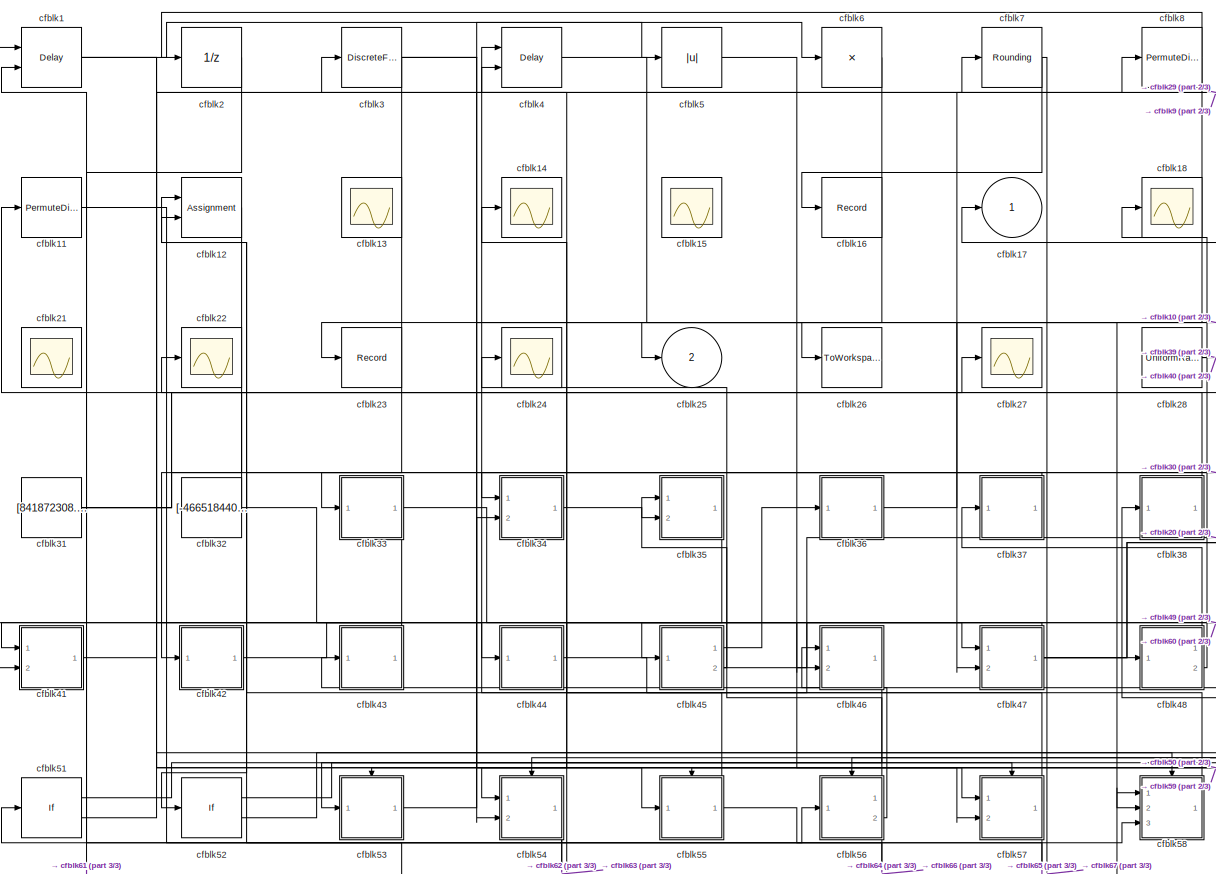
[diagram: root canvas - part 1/3, most of the canvas]
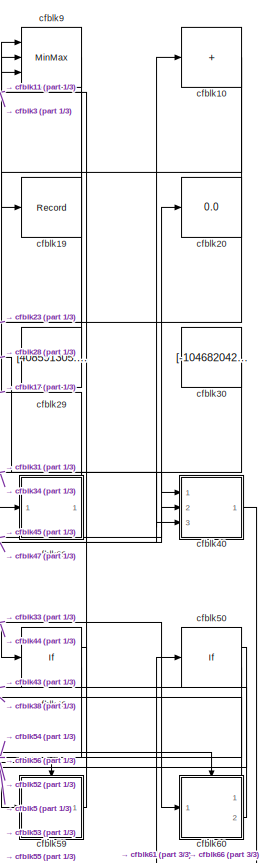
[diagram: root canvas - part 2/3, right side, full height]
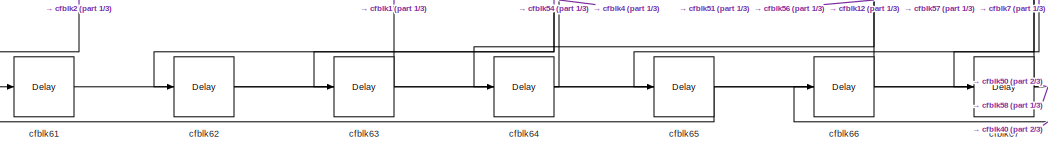
[diagram: root canvas - part 3/3, bottom center region]
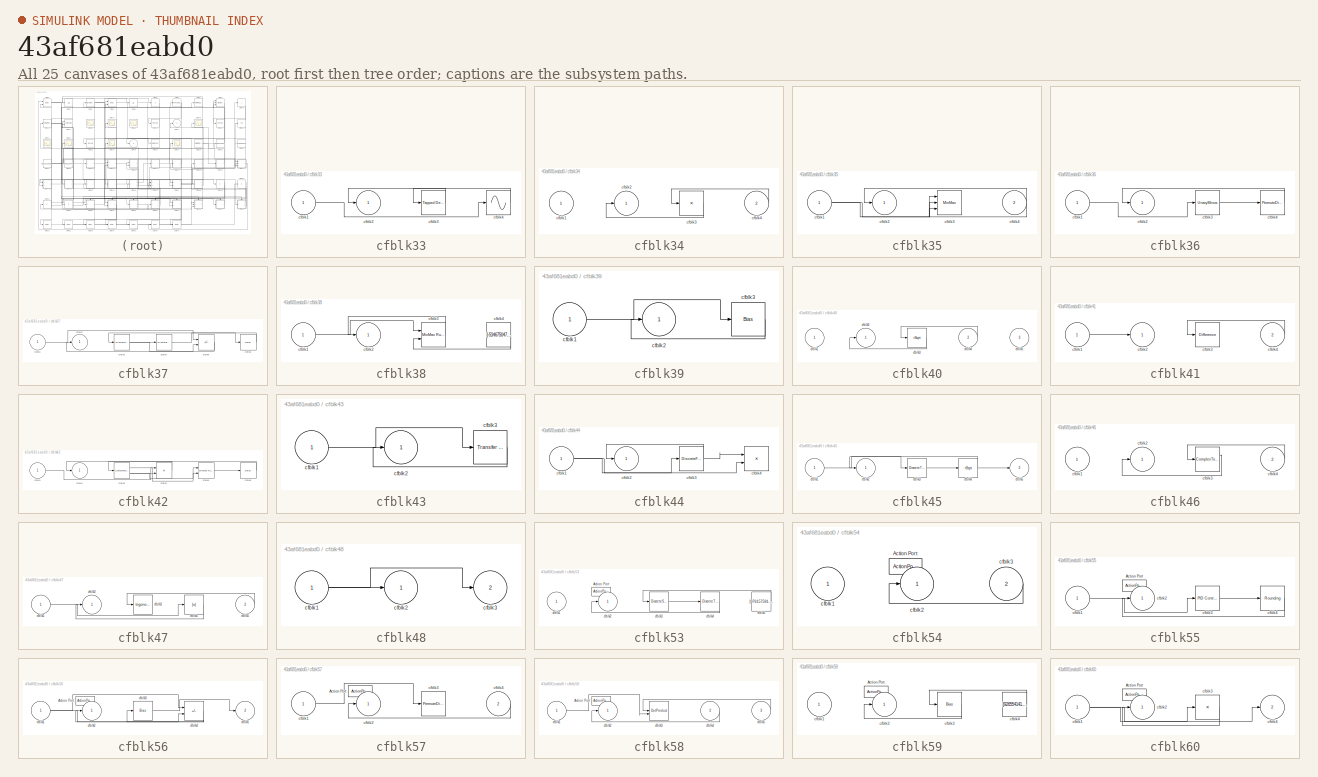
[diagram: thumbnail index - all 25 canvases of the model, root first then tree order]
MODEL slx_43af681eabd0
KIND model
CONFIG AbsTol = auto
CONFIG EnableMultiTasking = off
CONFIG FixedStep = auto
CONFIG MaxStep = auto
CONFIG MinStep = auto
CONFIG RelTol = 1e-3
CONFIG SampleTimeConstraint = Unconstrained
CONFIG SolverName = VariableStepAuto
CONFIG StartTime = 0.0
CONFIG StopTime = 10.0
BLOCK [Delay] cfblk1
  InputPortMap = u0,e6
  Ports = [2, 1]
  SampleTime = 1
  ShowEnablePort = on
BLOCK [Sum] cfblk10
  IconShape = rectangular
  Inputs = +
  Ports = [1, 1]
BLOCK [PermuteDimensions] cfblk11
BLOCK [Assignment] cfblk12
  DiagnosticForDimensions = Warning
  IndexOptions = Index vector (dialog)
  Indices = 1
  OutputSizes = 1
  Ports = [2, 1]
BLOCK [Scope] cfblk13
  Floating = on
  NumInputPorts = 1
  Ports = []
BLOCK [Scope] cfblk14
  Floating = off
  NumInputPorts = 1
  Ports = [1]
BLOCK [Scope] cfblk15
  Floating = on
  NumInputPorts = 1
  Ports = []
BLOCK [Record] cfblk16
  FileSettingsInternal = {"entries":[{"content":{"excelSettings":{"content":{},"type":"Streamout.ExcelSettings"}},"type":"Streamout.FileSettingStorage","uuid":"38ef153d-d6ae-45e7-82f1-1ca2e326c5eb"}],"packageUris":["http://schema.mathworks.com/mf0/streamout_blocks/R2020a"],"version":"1.0"}
  Ports = [1]
  SignalsInternal = {"entries":[{"content":{"signals":[{"content":{"blockPath":["sampleModel267/cfblk16"],"channel":[],"dimensions":[1],"domain":"sampleModel267/cfblk16","lineColor":"#d95319","plots":[1],"port":1,"sid":[""],"signalID":11134,"signalName":"cfblk7"},"type":"RecordBlkView.Signal","uuid":"f5056942-7931-4c3f-87a4-53e35f3bb4b1"}]},"type":"RecordBlkView.InputSignals","uuid":"7db35bab-36c3-4b73-9a92-ac3f675e2...<+97ch>
  VisualizationBindings = {"sparklinesplugin":{"info":[{"bindingParametersList":[],"subplotID":1}]}}
BLOCK [Outport] cfblk17
BLOCK [Scope] cfblk18
  Floating = off
  NumInputPorts = 1
  Ports = [1]
BLOCK [Record] cfblk19
  FileSettingsInternal = {"entries":[{"content":{"excelSettings":{"content":{},"type":"Streamout.ExcelSettings"}},"type":"Streamout.FileSettingStorage","uuid":"e67b9910-70a3-4f08-b618-b13b58853db8"}],"packageUris":["http://schema.mathworks.com/mf0/streamout_blocks/R2020a"],"version":"1.0"}
  Ports = [1]
  SignalsInternal = {"entries":[{"content":{"signals":[{"content":{"blockPath":["sampleModel267/cfblk19"],"channel":[],"dimensions":[1],"domain":"sampleModel267/cfblk19","lineColor":"#edb120","plots":[1],"port":1,"sid":[""],"signalID":11138,"signalName":"cfblk10"},"type":"RecordBlkView.Signal","uuid":"ad1882d4-40aa-4b95-a06e-3b82c8a17900"}]},"type":"RecordBlkView.InputSignals","uuid":"f4741eb0-9131-4b04-bfe2-4320a4ac...<+98ch>
  VisualizationBindings = {"sparklinesplugin":{"info":[{"bindingParametersList":[],"subplotID":1}]}}
BLOCK [UnitDelay] cfblk2
  HasFrameUpgradeWarning = on
BLOCK [Display] cfblk20
  Decimation = 1
  Ports = [1]
BLOCK [Scope] cfblk21
  Floating = on
  NumInputPorts = 1
  Ports = []
BLOCK [Scope] cfblk22
  Floating = off
  NumInputPorts = 1
  Ports = [1]
BLOCK [Record] cfblk23
  FileSettingsInternal = {"entries":[{"content":{"excelSettings":{"content":{},"type":"Streamout.ExcelSettings"}},"type":"Streamout.FileSettingStorage","uuid":"5cac87e1-3c50-4b70-acf6-de645cdb8377"}],"packageUris":["http://schema.mathworks.com/mf0/streamout_blocks/R2020a"],"version":"1.0"}
  Ports = [1]
  SignalsInternal = {"entries":[{"content":{"signals":[{"content":{"blockPath":["sampleModel267/cfblk23"],"channel":[],"dimensions":[1],"domain":"sampleModel267/cfblk23","lineColor":"#7e2f8e","plots":[1],"port":1,"sid":[""],"signalID":11142,"signalName":"cfblk10"},"type":"RecordBlkView.Signal","uuid":"43345d3a-b4ac-4ed1-88fb-152ae4781999"}]},"type":"RecordBlkView.InputSignals","uuid":"60e12632-78ef-4a34-abc7-bf1c9a5d...<+98ch>
  VisualizationBindings = {"sparklinesplugin":{"info":[{"bindingParametersList":[],"subplotID":1}]}}
BLOCK [Scope] cfblk24
  Floating = off
  NumInputPorts = 1
  Ports = [1]
BLOCK [Outport] cfblk25
  Port = 2
BLOCK [ToWorkspace] cfblk26
  FixptAsFi = on
  MaxDataPoints = inf
  Ports = [1]
  SampleTime = -1
  SaveFormat = Timeseries
  VariableName = ubxtyfo
BLOCK [Scope] cfblk27
  Floating = off
  NumInputPorts = 1
  Ports = [1]
BLOCK [UniformRandomNumber] cfblk28
  Maximum = [5455943711.863254]
  Minimum = [-3933460180.447495]
  SampleTime = 0.1
  Seed = [92993268.000000]
BLOCK [Constant] cfblk29
  SampleTime = 1
  Value = [408591305.059043]
BLOCK [DiscreteFilter] cfblk3
  InputPortMap = u0
  Ports = [1, 1]
  SampleTime = 1
BLOCK [Constant] cfblk30
  SampleTime = 1
  Value = [-104682042.752858]
BLOCK [Constant] cfblk31
  SampleTime = 1
  Value = [841872308.414962]
BLOCK [Constant] cfblk32
  SampleTime = 1
  Value = [-466518440.268140]
BLOCK [SubSystem] cfblk33
  Ports = [1, 1]
  RequestExecContextInheritance = off
BLOCK [Inport] cfblk33/cfblk1
BLOCK [Outport] cfblk33/cfblk2
BLOCK [Reference] cfblk33/cfblk3  REF=simulink/Discrete/Tapped Delay
  Ports = [1, 1]
  SourceBlock = simulink/Discrete/Tapped Delay
  SourceProductBaseCode = SL
  SourceType = Tapped Delay Line
BLOCK [Sin] cfblk33/cfblk4
  Ports = [1, 1]
  SampleTime = 0
  TimeSource = Use external signal
BLOCK [SubSystem] cfblk34
  Ports = [2, 1]
  RequestExecContextInheritance = off
BLOCK [Inport] cfblk34/cfblk1
BLOCK [Outport] cfblk34/cfblk2
BLOCK [Product] cfblk34/cfblk3
  Inputs = *
  Ports = [1, 1]
BLOCK [Inport] cfblk34/cfblk4
  Port = 2
BLOCK [SubSystem] cfblk35
  Ports = [2, 1]
  RequestExecContextInheritance = off
BLOCK [Inport] cfblk35/cfblk1
BLOCK [Outport] cfblk35/cfblk2
BLOCK [MinMax] cfblk35/cfblk3
  Function = max
  Inputs = 3
  Ports = [3, 1]
BLOCK [Inport] cfblk35/cfblk4
  Port = 2
BLOCK [SubSystem] cfblk36
  Ports = [1, 1]
  RequestExecContextInheritance = off
BLOCK [Inport] cfblk36/cfblk1
BLOCK [Outport] cfblk36/cfblk2
BLOCK [UnaryMinus] cfblk36/cfblk3
BLOCK [PermuteDimensions] cfblk36/cfblk4
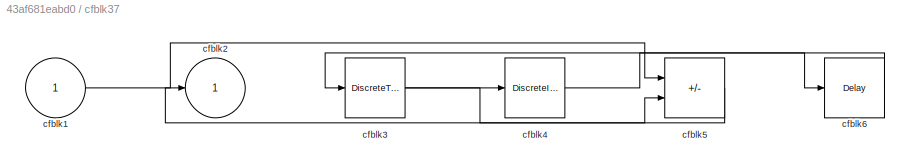
BLOCK [SubSystem] cfblk37
  Ports = [1, 1]
  RequestExecContextInheritance = off
BLOCK [Inport] cfblk37/cfblk1
BLOCK [Outport] cfblk37/cfblk2
BLOCK [DiscreteTransferFcn] cfblk37/cfblk3
  InputPortMap = u0
  Ports = [1, 1]
  SampleTime = 1
BLOCK [DiscreteIntegrator] cfblk37/cfblk4
  ICPrevOutput = DiscIntNeverNeededParam
  ICPrevScaledInput = DiscIntNeverNeededParam
  InitialConditionSetting = Auto
  Ports = [1, 1]
BLOCK [Sum] cfblk37/cfblk5
  IconShape = rectangular
  Inputs = +-
  Ports = [2, 1]
BLOCK [Delay] cfblk37/cfblk6
  InputPortMap = u0
  Ports = [1, 1]
  SampleTime = 1
BLOCK [SubSystem] cfblk38
  Ports = [1, 1]
  RequestExecContextInheritance = off
BLOCK [Inport] cfblk38/cfblk1
BLOCK [Outport] cfblk38/cfblk2
BLOCK [Reference] cfblk38/cfblk3  REF=simulink/Math
Operations/MinMax
Running
Resettable
  Ports = [2, 1]
  SourceBlock = simulink/Math\nOperations/MinMax\nRunning\nResettable
  SourceProductBaseCode = SL
  SourceType = MinMax Running Resettable
BLOCK [Constant] cfblk38/cfblk4
  SampleTime = 1
  Value = [-534675047.013126]
BLOCK [SubSystem] cfblk39
  Ports = [1, 1]
  RequestExecContextInheritance = off
BLOCK [Inport] cfblk39/cfblk1
BLOCK [Outport] cfblk39/cfblk2
BLOCK [Bias] cfblk39/cfblk3
  Bias = [-354064516.958488]
  SaturateOnIntegerOverflow = off
BLOCK [Delay] cfblk4
  InputPortMap = u0,e6
  Ports = [2, 1]
  SampleTime = 1
  ShowEnablePort = on
BLOCK [SubSystem] cfblk40
  Ports = [3, 1]
  RequestExecContextInheritance = off
BLOCK [Inport] cfblk40/cfblk1
BLOCK [Outport] cfblk40/cfblk2
BLOCK [Sqrt] cfblk40/cfblk3
  AlgorithmType = Newton-Raphson
  Operator = rSqrt
BLOCK [Inport] cfblk40/cfblk4
  Port = 2
BLOCK [Inport] cfblk40/cfblk5
  Port = 3
BLOCK [SubSystem] cfblk41
  Ports = [2, 1]
  RequestExecContextInheritance = off
BLOCK [Inport] cfblk41/cfblk1
BLOCK [Outport] cfblk41/cfblk2
BLOCK [Reference] cfblk41/cfblk3  REF=simulink/Discrete/Difference
  Ports = [1, 1]
  SourceBlock = simulink/Discrete/Difference
  SourceProductBaseCode = SL
  SourceType = Difference
BLOCK [Inport] cfblk41/cfblk4
  Port = 2
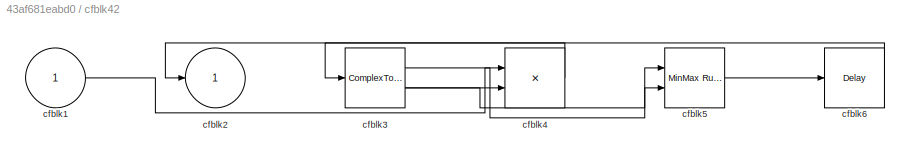
BLOCK [SubSystem] cfblk42
  Ports = [1, 1]
  RequestExecContextInheritance = off
BLOCK [Inport] cfblk42/cfblk1
BLOCK [Outport] cfblk42/cfblk2
BLOCK [ComplexToMagnitudeAngle] cfblk42/cfblk3
  Ports = [1, 2]
BLOCK [Product] cfblk42/cfblk4
  Inputs = **
  Ports = [2, 1]
BLOCK [Reference] cfblk42/cfblk5  REF=simulink/Math
Operations/MinMax
Running
Resettable
  Ports = [2, 1]
  SourceBlock = simulink/Math\nOperations/MinMax\nRunning\nResettable
  SourceProductBaseCode = SL
  SourceType = MinMax Running Resettable
BLOCK [Delay] cfblk42/cfblk6
  InputPortMap = u0
  Ports = [1, 1]
  SampleTime = 1
BLOCK [SubSystem] cfblk43
  Ports = [1, 1]
  RequestExecContextInheritance = off
BLOCK [Inport] cfblk43/cfblk1
BLOCK [Outport] cfblk43/cfblk2
BLOCK [Reference] cfblk43/cfblk3  REF=simulink/Discrete/Transfer Fcn
First Order
  Ports = [1, 1]
  SourceBlock = simulink/Discrete/Transfer Fcn\nFirst Order
  SourceProductBaseCode = SL
  SourceType = First Order Transfer Fcn
BLOCK [SubSystem] cfblk44
  Ports = [1, 1]
  RequestExecContextInheritance = off
BLOCK [Inport] cfblk44/cfblk1
BLOCK [Outport] cfblk44/cfblk2
BLOCK [DiscreteFilter] cfblk44/cfblk3
  InputPortMap = u0
  Ports = [1, 1]
  SampleTime = 1
BLOCK [Product] cfblk44/cfblk4
  Ports = [2, 1]
BLOCK [SubSystem] cfblk45
  Ports = [1, 2]
  RequestExecContextInheritance = off
BLOCK [Inport] cfblk45/cfblk1
BLOCK [Outport] cfblk45/cfblk2
BLOCK [DiscreteTransferFcn] cfblk45/cfblk3
  InputPortMap = u0
  Ports = [1, 1]
  SampleTime = 1
BLOCK [Sqrt] cfblk45/cfblk4
  AlgorithmType = Newton-Raphson
  Operator = rSqrt
BLOCK [Outport] cfblk45/cfblk5
  Port = 2
BLOCK [SubSystem] cfblk46
  Ports = [2, 1]
  RequestExecContextInheritance = off
BLOCK [Inport] cfblk46/cfblk1
BLOCK [Outport] cfblk46/cfblk2
BLOCK [ComplexToMagnitudeAngle] cfblk46/cfblk3
  Ports = [1, 2]
BLOCK [Inport] cfblk46/cfblk4
  Port = 2
BLOCK [SubSystem] cfblk47
  Ports = [2, 1]
  RequestExecContextInheritance = off
BLOCK [Inport] cfblk47/cfblk1
BLOCK [Outport] cfblk47/cfblk2
BLOCK [Trigonometry] cfblk47/cfblk3
  Ports = [1, 1]
BLOCK [Abs] cfblk47/cfblk4
  SaturateOnIntegerOverflow = off
BLOCK [Inport] cfblk47/cfblk5
  Port = 2
BLOCK [SubSystem] cfblk48
  Ports = [1, 2]
  RequestExecContextInheritance = off
BLOCK [Inport] cfblk48/cfblk1
BLOCK [Outport] cfblk48/cfblk2
BLOCK [Outport] cfblk48/cfblk3
  Port = 2
BLOCK [If] cfblk49
  IfExpression = u1 >= 0
  Ports = [1, 2]
  SampleTime = 1
BLOCK [Abs] cfblk5
  SaturateOnIntegerOverflow = off
BLOCK [If] cfblk50
  IfExpression = u1 >= 0
  Ports = [1, 2]
  SampleTime = 1
BLOCK [If] cfblk51
  IfExpression = u1 >= 0
  Ports = [1, 2]
  SampleTime = 1
BLOCK [If] cfblk52
  IfExpression = u1 >= 0
  Ports = [1, 2]
  SampleTime = 1
BLOCK [SubSystem] cfblk53
  Ports = [1, 1, 0, 0, 0, 0, 0, 1]
  RequestExecContextInheritance = off
  TreatAsAtomicUnit = on
BLOCK [ActionPort] cfblk53/Action Port
  ActionPortLabel = if(u1 >= 0)
BLOCK [Inport] cfblk53/cfblk1
BLOCK [Outport] cfblk53/cfblk2
BLOCK [DiscreteStateSpace] cfblk53/cfblk3
  SampleTime = -1
BLOCK [DiscreteTransferFcn] cfblk53/cfblk4
  InputPortMap = u0
  Ports = [1, 1]
BLOCK [Constant] cfblk53/cfblk5
  SampleTime = 1
  Value = [976157581.288518]
BLOCK [SubSystem] cfblk54
  Ports = [2, 1, 0, 0, 0, 0, 0, 1]
  RequestExecContextInheritance = off
  TreatAsAtomicUnit = on
BLOCK [ActionPort] cfblk54/Action Port
  ActionPortLabel = else
BLOCK [Inport] cfblk54/cfblk1
BLOCK [Outport] cfblk54/cfblk2
BLOCK [Inport] cfblk54/cfblk3
  Port = 2
BLOCK [SubSystem] cfblk55
  Ports = [1, 1, 0, 0, 0, 0, 0, 1]
  RequestExecContextInheritance = off
  TreatAsAtomicUnit = on
BLOCK [ActionPort] cfblk55/Action Port
  ActionPortLabel = if(u1 >= 0)
BLOCK [Inport] cfblk55/cfblk1
BLOCK [Outport] cfblk55/cfblk2
BLOCK [Reference] cfblk55/cfblk3  REF=slpidlib/PID Controller
  Ports = [1, 1]
  SourceBlock = slpidlib/PID Controller
  SourceProductBaseCode = SL
  SourceType = PID 1dof
BLOCK [Rounding] cfblk55/cfblk4
BLOCK [SubSystem] cfblk56
  Ports = [1, 2, 0, 0, 0, 0, 0, 1]
  RequestExecContextInheritance = off
  TreatAsAtomicUnit = on
BLOCK [ActionPort] cfblk56/Action Port
  ActionPortLabel = else
BLOCK [Inport] cfblk56/cfblk1
BLOCK [Outport] cfblk56/cfblk2
BLOCK [Bias] cfblk56/cfblk3
  Bias = [-398083101.753861]
  SaturateOnIntegerOverflow = off
BLOCK [Sum] cfblk56/cfblk4
  IconShape = rectangular
  Inputs = +-
  Ports = [2, 1]
BLOCK [Outport] cfblk56/cfblk5
  Port = 2
BLOCK [SubSystem] cfblk57
  Ports = [2, 1, 0, 0, 0, 0, 0, 1]
  RequestExecContextInheritance = off
  TreatAsAtomicUnit = on
BLOCK [ActionPort] cfblk57/Action Port
  ActionPortLabel = if(u1 >= 0)
BLOCK [Inport] cfblk57/cfblk1
BLOCK [Outport] cfblk57/cfblk2
BLOCK [PermuteDimensions] cfblk57/cfblk3
BLOCK [Inport] cfblk57/cfblk4
  Port = 2
BLOCK [SubSystem] cfblk58
  Ports = [3, 1, 0, 0, 0, 0, 0, 1]
  RequestExecContextInheritance = off
  TreatAsAtomicUnit = on
BLOCK [ActionPort] cfblk58/Action Port
  ActionPortLabel = else
BLOCK [Inport] cfblk58/cfblk1
BLOCK [Outport] cfblk58/cfblk2
BLOCK [DotProduct] cfblk58/cfblk3
  OutDataTypeStr = Inherit: Inherit via internal rule
BLOCK [Inport] cfblk58/cfblk4
  Port = 2
BLOCK [Inport] cfblk58/cfblk5
  Port = 3
BLOCK [SubSystem] cfblk59
  Ports = [1, 1, 0, 0, 0, 0, 0, 1]
  RequestExecContextInheritance = off
  TreatAsAtomicUnit = on
BLOCK [ActionPort] cfblk59/Action Port
  ActionPortLabel = if(u1 >= 0)
BLOCK [Inport] cfblk59/cfblk1
BLOCK [Outport] cfblk59/cfblk2
BLOCK [Bias] cfblk59/cfblk3
  Bias = [659924328.864957]
  SaturateOnIntegerOverflow = off
BLOCK [Constant] cfblk59/cfblk4
  SampleTime = 1
  Value = [926554141.570822]
BLOCK [Product] cfblk6
  Inputs = *
  Ports = [1, 1]
BLOCK [SubSystem] cfblk60
  Ports = [1, 2, 0, 0, 0, 0, 0, 1]
  RequestExecContextInheritance = off
  TreatAsAtomicUnit = on
BLOCK [ActionPort] cfblk60/Action Port
  ActionPortLabel = else
BLOCK [Inport] cfblk60/cfblk1
BLOCK [Outport] cfblk60/cfblk2
BLOCK [Product] cfblk60/cfblk3
  Inputs = *
  Ports = [1, 1]
BLOCK [Outport] cfblk60/cfblk4
  Port = 2
BLOCK [Delay] cfblk61
  InputPortMap = u0
  Ports = [1, 1]
  SampleTime = 1
BLOCK [Delay] cfblk62
  InputPortMap = u0
  Ports = [1, 1]
  SampleTime = 1
BLOCK [Delay] cfblk63
  InputPortMap = u0
  Ports = [1, 1]
  SampleTime = 1
BLOCK [Delay] cfblk64
  InputPortMap = u0
  Ports = [1, 1]
  SampleTime = 1
BLOCK [Delay] cfblk65
  InputPortMap = u0
  Ports = [1, 1]
  SampleTime = 1
BLOCK [Delay] cfblk66
  InputPortMap = u0
  Ports = [1, 1]
  SampleTime = 1
BLOCK [Delay] cfblk67
  InputPortMap = u0
  Ports = [1, 1]
  SampleTime = 1
BLOCK [Rounding] cfblk7
BLOCK [PermuteDimensions] cfblk8
BLOCK [MinMax] cfblk9
  Inputs = 3
  Ports = [3, 1]
NET cfblk10:1 -> cfblk19:1, cfblk23:1
NET cfblk11:1 -> cfblk56:1, cfblk57:1, cfblk9:3
LINE cfblk12:1 -> cfblk42:1
NET cfblk1:1 -> cfblk46:2, cfblk55:1, cfblk6:1
NET cfblk28:1 -> cfblk39:1, cfblk40:3
LINE cfblk29:1 -> cfblk3:1
LINE cfblk2:1 -> cfblk61:1
LINE cfblk30:1 -> cfblk34:1
NET cfblk31:1 -> cfblk27:1, cfblk40:1, cfblk9:2
NET cfblk32:1 -> cfblk22:1, cfblk44:1
LINE cfblk33/cfblk1:1 -> cfblk33/cfblk4:1
LINE cfblk33/cfblk3:1 -> cfblk33/cfblk2:1
LINE cfblk33/cfblk4:1 -> cfblk33/cfblk3:1
NET cfblk33:1 -> cfblk41:2, cfblk49:1
LINE cfblk34/cfblk3:1 -> cfblk34/cfblk2:1
LINE cfblk34/cfblk4:1 -> cfblk34/cfblk3:1
LINE cfblk34:1 -> cfblk35:2
NET cfblk35/cfblk1:1 -> cfblk35/cfblk3:1, cfblk35/cfblk3:3
NET cfblk35/cfblk4:1 -> cfblk35/cfblk2:1, cfblk35/cfblk3:2
LINE cfblk35:1 -> cfblk54:1
LINE cfblk36/cfblk1:1 -> cfblk36/cfblk3:1
LINE cfblk36/cfblk3:1 -> cfblk36/cfblk4:1
LINE cfblk36/cfblk4:1 -> cfblk36/cfblk2:1
LINE cfblk36:1 -> cfblk8:1
LINE cfblk37/cfblk1:1 -> cfblk37/cfblk5:1
NET cfblk37/cfblk3:1 -> cfblk37/cfblk4:1, cfblk37/cfblk5:2
LINE cfblk37/cfblk4:1 -> cfblk37/cfblk6:1
LINE cfblk37/cfblk5:1 -> cfblk37/cfblk2:1
LINE cfblk37/cfblk6:1 -> cfblk37/cfblk3:1
LINE cfblk37:1 -> cfblk33:1
LINE cfblk38/cfblk1:1 -> cfblk38/cfblk3:1
LINE cfblk38/cfblk3:1 -> cfblk38/cfblk2:1
LINE cfblk38/cfblk4:1 -> cfblk38/cfblk3:2
LINE cfblk38:1 -> cfblk11:1
LINE cfblk39/cfblk1:1 -> cfblk39/cfblk3:1
LINE cfblk39/cfblk3:1 -> cfblk39/cfblk2:1
LINE cfblk39:1 -> cfblk17:1
NET cfblk3:1 -> cfblk26:1, cfblk52:1, cfblk57:2, cfblk5:1
LINE cfblk40/cfblk3:1 -> cfblk40/cfblk2:1
LINE cfblk40/cfblk4:1 -> cfblk40/cfblk3:1
LINE cfblk40:1 -> cfblk66:1
LINE cfblk41/cfblk1:1 -> cfblk41/cfblk2:1
LINE cfblk41/cfblk4:1 -> cfblk41/cfblk3:1
LINE cfblk41:1 -> cfblk7:1
LINE cfblk42/cfblk1:1 -> cfblk42/cfblk4:1
LINE cfblk42/cfblk3:1 -> cfblk42/cfblk5:1
NET cfblk42/cfblk3:2 -> cfblk42/cfblk4:2, cfblk42/cfblk5:2
LINE cfblk42/cfblk4:1 -> cfblk42/cfblk2:1
LINE cfblk42/cfblk5:1 -> cfblk42/cfblk6:1
LINE cfblk42/cfblk6:1 -> cfblk42/cfblk3:1
LINE cfblk42:1 -> cfblk47:1
LINE cfblk43/cfblk1:1 -> cfblk43/cfblk3:1
LINE cfblk43/cfblk3:1 -> cfblk43/cfblk2:1
LINE cfblk43:1 -> cfblk41:1
NET cfblk44/cfblk1:1 -> cfblk44/cfblk3:1, cfblk44/cfblk4:2
NET cfblk44/cfblk3:1 -> cfblk44/cfblk2:1, cfblk44/cfblk4:1
LINE cfblk44:1 -> cfblk60:1
LINE cfblk45/cfblk1:1 -> cfblk45/cfblk3:1
LINE cfblk45/cfblk3:1 -> cfblk45/cfblk4:1
NET cfblk45/cfblk4:1 -> cfblk45/cfblk2:1, cfblk45/cfblk5:1
LINE cfblk45:1 -> cfblk36:1
NET cfblk45:2 -> cfblk20:1, cfblk24:1
LINE cfblk46/cfblk3:1 -> cfblk46/cfblk2:1
LINE cfblk46/cfblk4:1 -> cfblk46/cfblk3:1
LINE cfblk46:1 -> cfblk53:1
LINE cfblk47/cfblk1:1 -> cfblk47/cfblk4:1
LINE cfblk47/cfblk4:1 -> cfblk47/cfblk2:1
LINE cfblk47/cfblk5:1 -> cfblk47/cfblk3:1
NET cfblk47:1 -> cfblk10:1, cfblk40:2, cfblk45:1, cfblk48:1
NET cfblk48/cfblk1:1 -> cfblk48/cfblk2:1, cfblk48/cfblk3:1
LINE cfblk48:1 -> cfblk37:1
LINE cfblk48:2 -> cfblk18:1
LINE cfblk49:1 -> cfblk53:ifaction
LINE cfblk49:2 -> cfblk54:ifaction
LINE cfblk4:1 -> cfblk58:2
LINE cfblk50:1 -> cfblk55:ifaction
LINE cfblk50:2 -> cfblk56:ifaction
LINE cfblk51:1 -> cfblk57:ifaction
LINE cfblk51:2 -> cfblk58:ifaction
LINE cfblk52:1 -> cfblk59:ifaction
LINE cfblk52:2 -> cfblk60:ifaction
LINE cfblk53/cfblk3:1 -> cfblk53/cfblk4:1
LINE cfblk53/cfblk4:1 -> cfblk53/cfblk2:1
LINE cfblk53/cfblk5:1 -> cfblk53/cfblk3:1
LINE cfblk53:1 -> cfblk34:2
LINE cfblk54/cfblk3:1 -> cfblk54/cfblk2:1
NET cfblk54:1 -> cfblk62:1, cfblk63:1
LINE cfblk55/cfblk1:1 -> cfblk55/cfblk3:1
LINE cfblk55/cfblk3:1 -> cfblk55/cfblk4:1
LINE cfblk55/cfblk4:1 -> cfblk55/cfblk2:1
NET cfblk55:1 -> cfblk4:1, cfblk58:3
NET cfblk56/cfblk1:1 -> cfblk56/cfblk4:1, cfblk56/cfblk4:2
LINE cfblk56/cfblk3:1 -> cfblk56/cfblk5:1
NET cfblk56/cfblk4:1 -> cfblk56/cfblk2:1, cfblk56/cfblk3:1
LINE cfblk56:1 -> cfblk35:1
NET cfblk56:2 -> cfblk46:1, cfblk64:1
LINE cfblk57/cfblk1:1 -> cfblk57/cfblk3:1
LINE cfblk57/cfblk4:1 -> cfblk57/cfblk2:1
NET cfblk57:1 -> cfblk14:1, cfblk65:1
LINE cfblk58/cfblk1:1 -> cfblk58/cfblk3:2
LINE cfblk58/cfblk4:1 -> cfblk58/cfblk2:1
LINE cfblk58/cfblk5:1 -> cfblk58/cfblk3:1
LINE cfblk58:1 -> cfblk12:1
LINE cfblk59/cfblk3:1 -> cfblk59/cfblk2:1
LINE cfblk59/cfblk4:1 -> cfblk59/cfblk3:1
LINE cfblk59:1 -> cfblk9:1
LINE cfblk5:1 -> cfblk59:1
NET cfblk60/cfblk1:1 -> cfblk60/cfblk3:1, cfblk60/cfblk4:1
LINE cfblk60/cfblk3:1 -> cfblk60/cfblk2:1
LINE cfblk60:1 -> cfblk38:1
LINE cfblk60:2 -> cfblk43:1
LINE cfblk61:1 -> cfblk50:1
LINE cfblk62:1 -> cfblk58:1
LINE cfblk63:1 -> cfblk1:2
LINE cfblk64:1 -> cfblk4:2
LINE cfblk65:1 -> cfblk1:1
LINE cfblk66:1 -> cfblk51:1
LINE cfblk67:1 -> cfblk12:2
LINE cfblk6:1 -> cfblk25:1
NET cfblk7:1 -> cfblk16:1, cfblk67:1
NET cfblk8:1 -> cfblk2:1, cfblk54:2
LINE cfblk9:1 -> cfblk47:2
note: NET lines group one-source signal fan-out (src -> all destinations, sorted); 1:1 wires keep LINE
